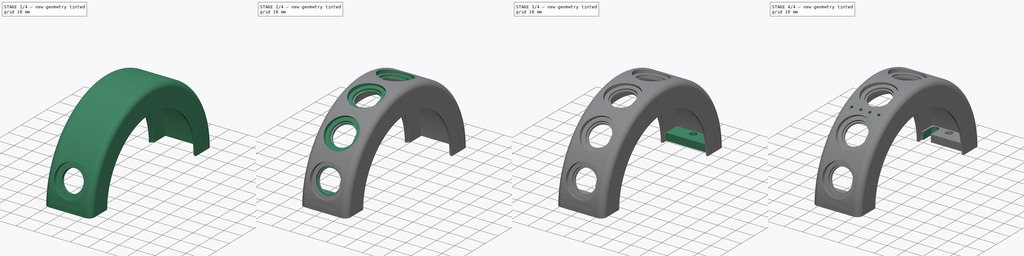
[diagram: build sequence overview — one tinted view per stage of 4, left to right]
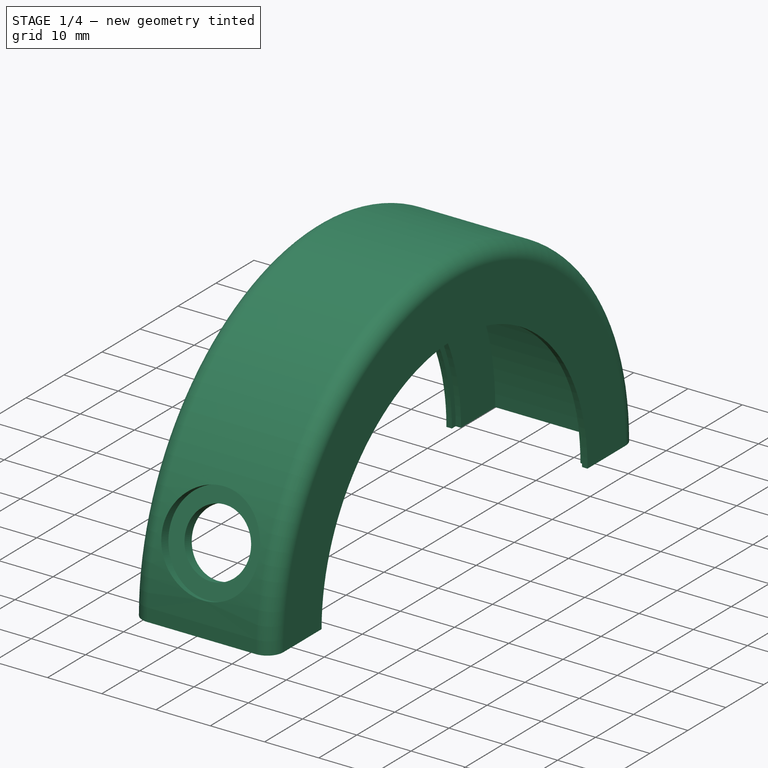
[diagram: stage 1 of 4 — iso view after this stage's code; geometry added in this stage tinted green]
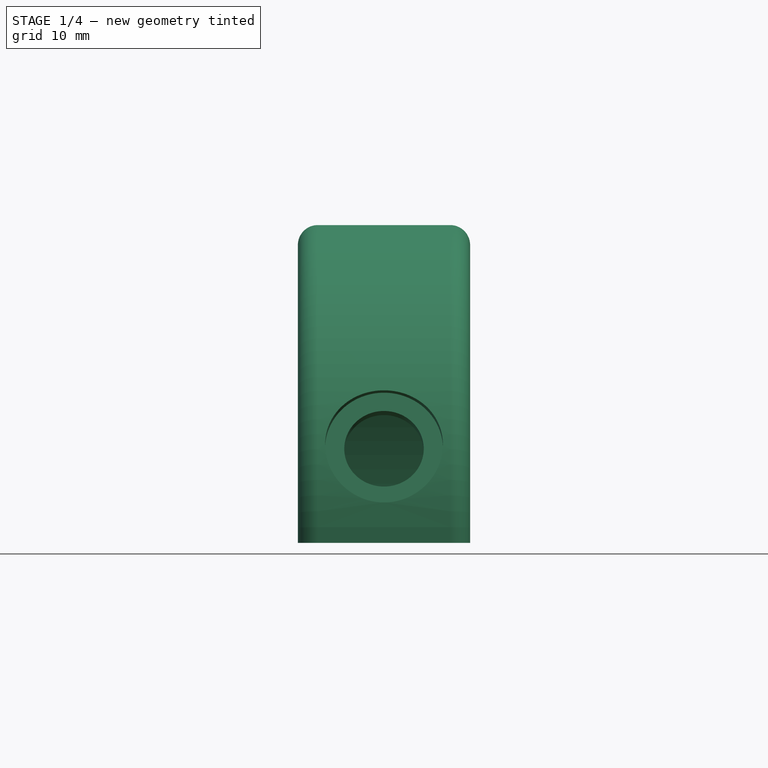
[diagram: stage 1 of 4 — front view after this stage's code; geometry added in this stage tinted green]
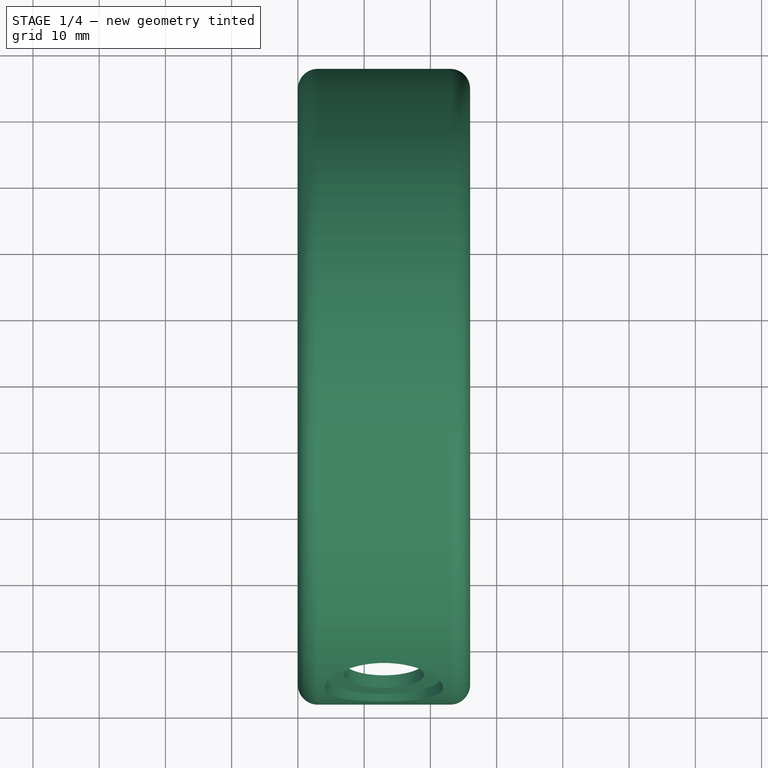
[diagram: stage 1 of 4 — top view after this stage's code; geometry added in this stage tinted green]
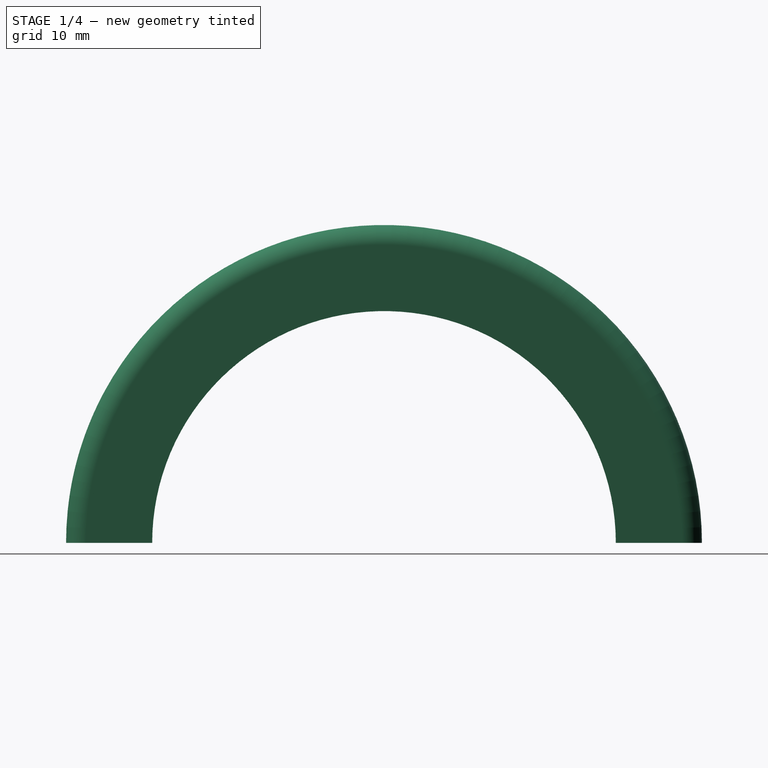
[diagram: stage 1 of 4 — right view after this stage's code; geometry added in this stage tinted green]
FCSTD DOCUMENT  (FreeCAD 1.0R39285 (Git))
Label: UpperPartFront
Comment: # 2025-08-26 21:40:01: read from None
License: All rights reserved
LicenseURL: https://en.wikipedia.org/wiki/All_rights_reserved
objects: Sketcher::SketchObject×13, PartDesign::Pocket×5, PartDesign::Pad×4, Spreadsheet::Sheet×3, PartDesign::Hole×2, App::Link×2, PartDesign::Revolution×1, PartDesign::PolarPattern×1, PartDesign::Mirrored×1, PartDesign::Body×1
note: 67 computed .brp shape members not serialized (recipe doc carries the construction recipe); baked Part::Feature solids carry a one-line shape summary decoded from their .brp
EXTERNAL_REF file=MainDimensions.FCStd obj=Spreadsheet

FEATURE [Spreadsheet::Sheet] Parameters
  cells = A1='Parameter; B1='Value; C1='Comment; A2='Switch_Angle; B2(Switch_Angle)==83 °; A3='Number_Switch; B3(Number_Switch)=4; A4='Cable_Diameter; B4(Cable_Diameter)==4.2 mm; A5='Offset_Cable; B5(Offset_Cable)==8 mm; A6='d53; B6(d53_)==16.5 mm; A7='LED_Spacing; B7(LED_Spacing)==5 mm; A8='First_Angle; B8(First_Angle)==18 °
FEATURE [Sketcher::SketchObject] Sketch1
  ArcFitTolerance = 1e-06
  FullyConstrained = true
  MakeInternals = false
  expr: Constraints[26] = <<MainDimensions>>.Outer_Diameter / 2
  expr: Constraints[27] = <<MainDimensions>>.Width
  expr: Constraints[29] = <<MainDimensions>>.Cut_Diameter / 2
  sketch-geometry (16):
    g0: LineSegment StartX=0 StartY=35 StartZ=0 EndX=0 EndY=45 EndZ=0
    g1: LineSegment StartX=3 StartY=48 StartZ=0 EndX=23 EndY=48 EndZ=0
    g2: LineSegment StartX=26 StartY=45 StartZ=0 EndX=26 EndY=35 EndZ=0
    g3: LineSegment StartX=26 StartY=35 StartZ=0 EndX=25 EndY=35 EndZ=0
    g4: LineSegment StartX=25 StartY=35 StartZ=0 EndX=25 EndY=36 EndZ=0
    g5: LineSegment StartX=25 StartY=36 StartZ=0 EndX=24 EndY=36 EndZ=0
    g6: LineSegment StartX=24 StartY=36 StartZ=0 EndX=24 EndY=45 EndZ=0
    g7: LineSegment StartX=24 StartY=45 StartZ=0 EndX=2 EndY=45 EndZ=0
    g8: LineSegment StartX=2 StartY=45 StartZ=0 EndX=2 EndY=36 EndZ=0
    g9: LineSegment StartX=2 StartY=36 StartZ=0 EndX=1 EndY=36 EndZ=0
    g10: LineSegment StartX=1 StartY=36 StartZ=0 EndX=1 EndY=35 EndZ=0
    g11: LineSegment StartX=1 StartY=35 StartZ=0 EndX=0 EndY=35 EndZ=0
    g12: ArcOfCircle CenterX=3 CenterY=45 CenterZ=0 NormalX=0 NormalY=0 NormalZ=1 AngleXU=0 Radius=3 StartAngle=1.5708 EndAngle=3.14159
    g13: GeomPoint [constr] X=0 Y=48 Z=0
    g14: ArcOfCircle CenterX=23 CenterY=45 CenterZ=0 NormalX=0 NormalY=0 NormalZ=1 AngleXU=0 Radius=3 StartAngle=8e-16 EndAngle=1.5708
    g15: GeomPoint [constr] X=26 Y=48 Z=0
  constraints (43):
    c: PointOnObject(g0,g-2)
    c: PointOnObject(g13,g-2)
    c: Horizontal(g1)
    c: Vertical(g2)
    c: Coincident(g3,g2)
    c: Horizontal(g3)
    c: Coincident(g4,g3)
    c: Vertical(g4)
    c: Coincident(g5,g4)
    c: Horizontal(g5)
    c: Coincident(g6,g5)
    c: Vertical(g6)
    c: Coincident(g7,g6)
    c: Horizontal(g7)
    c: Coincident(g8,g7)
    c: Vertical(g8)
    c: Coincident(g9,g8)
    c: Horizontal(g9)
    c: Coincident(g10,g9)
    c: Vertical(g10)
    c: Coincident(g11,g10)
    c: Coincident(g11,g0)
    c: Equal(g10,g9)
    c: Equal(g5,g9)
    c: Equal(g4,g5)
    c: Equal(g4,g3)
    c: DistanceY(g-1,g13) = 48
    c: DistanceX(g13,g15) = 26
    c: DistanceX(g11,g11) = 1
    c: Distance(g-1,g11) = 35
    c: Distance(g13,g7) = 3
    c: PointOnObject(g13,g0)
    c: PointOnObject(g13,g1)
    c: Tangent(g0,g12) = 1.5708
    c: Tangent(g1,g12) = 1.5708
    c: PointOnObject(g15,g1)
    c: PointOnObject(g15,g2)
    c: Tangent(g1,g14) = 1.5708
    c: Tangent(g2,g14) = 1.5708
    c: Equal(g14,g12)
    c: Radius(g12) = 3
    c: Tangent(g11,g3)
    c: Equal(g11,g10)
FEATURE [Sketcher::SketchObject] Sketch2
  ArcFitTolerance = 1e-06
  FullyConstrained = false
  MakeInternals = false
  Placement = pos=(26,0,0) rot=(0,1,0;1.5708rad)
  expr: Constraints[1] = Parameters.First_Angle
  sketch-geometry (1):
    g0: LineSegment StartX=0 StartY=0 StartZ=0 EndX=-15.6055 EndY=-48.0289 EndZ=0
  constraints (2):
    c: Coincident(g0,g-1)
    c: Angle(g0,g-2) = 0.314159
FEATURE [Sketcher::SketchObject] Sketch3
  ArcFitTolerance = 1e-06
  FullyConstrained = true
  MakeInternals = false
  Placement = pos=(13,-45.6507,14.8328) rot=(1,0,0;1.25664rad)
  expr: .Placement.Base.x = <<MainDimensions>>.Width / 2
  expr: .Placement.Base.y = -cos(Parameters.First_Angle) * <<MainDimensions>>.Outer_Diameter / 2
  expr: .Placement.Base.z = sin(Parameters.First_Angle) * <<MainDimensions>>.Outer_Diameter / 2
  expr: .Placement.Rotation.Angle = 90 ° - Parameters.First_Angle
  sketch-geometry (1):
    g0: Circle CenterX=0 CenterY=-2.2e-15 CenterZ=0 NormalX=0 NormalY=0 NormalZ=1 AngleXU=0 Radius=6
  constraints (2):
    c: Diameter(g0) = 12  'd7'
    c: Coincident(g0,g-1)
FEATURE [Sketcher::SketchObject] Sketch4
  ArcFitTolerance = 1e-06
  FullyConstrained = true
  MakeInternals = false
  Placement = pos=(13,-43.7486,14.2148) rot=(1,0,0;1.25664rad)
  expr: .Placement.Base.x = <<MainDimensions>>.Width / 2
  expr: .Placement.Base.y = -cos(Parameters.First_Angle) * (<<MainDimensions>>.Outer_Diameter / 2 - 2 mm)
  expr: .Placement.Base.z = sin(Parameters.First_Angle) * (<<MainDimensions>>.Outer_Diameter / 2 - 2 mm)
  expr: .Placement.Rotation.Angle = 90 ° - Parameters.First_Angle
  sketch-geometry (2):
    g0: ArcOfCircle CenterX=0 CenterY=0 CenterZ=0 NormalX=0 NormalY=0 NormalZ=1 AngleXU=0 Radius=6.85 StartAngle=0.439159 EndAngle=5.84403
    g1: LineSegment StartX=6.2 StartY=2.91247 StartZ=0 EndX=6.2 EndY=-2.91247 EndZ=0
  constraints (6):
    c: Vertical(g1)
    c: Coincident(g0,g-1)
    c: Distance(g0,g1) = 6.2
    c: Diameter(g0) = 13.7
    c: Coincident(g0,g1)
    c: Coincident(g0,g1)
FEATURE [Sketcher::SketchObject] Sketch5
  ArcFitTolerance = 1e-06
  FullyConstrained = true
  MakeInternals = false
  Placement = pos=(13,-45.6507,14.8328) rot=(1,0,0;1.25664rad)
  expr: .Placement.Base.x = <<MainDimensions>>.Width / 2
  expr: .Placement.Base.y = -cos(Parameters.First_Angle) * <<MainDimensions>>.Outer_Diameter / 2
  expr: .Placement.Base.z = sin(Parameters.First_Angle) * <<MainDimensions>>.Outer_Diameter / 2
  expr: .Placement.Rotation.Angle = 90 ° - Parameters.First_Angle
  sketch-geometry (1):
    g0: Circle CenterX=0 CenterY=-2.2e-15 CenterZ=0 NormalX=0 NormalY=0 NormalZ=1 AngleXU=0 Radius=8.9
  constraints (2):
    c: Diameter(g0) = 17.8
    c: Coincident(g0,g-1)
FEATURE [Sketcher::SketchObject] Sketch6
  ArcFitTolerance = 1e-06
  FullyConstrained = true
  MakeInternals = false
  Placement = pos=(24,-45,0) rot=(0,1,0;3.14159rad)
  expr: Constraints[10] = (<<MainDimensions>>.Outer_Diameter - <<MainDimensions>>.Cut_Diameter) / 2 - 4 mm
  expr: Constraints[9] = <<MainDimensions>>.Width - 4 mm
  sketch-geometry (4):
    g0: LineSegment StartX=0 StartY=0 StartZ=0 EndX=22 EndY=0 EndZ=0
    g1: LineSegment StartX=22 StartY=0 StartZ=0 EndX=22 EndY=9 EndZ=0
    g2: LineSegment StartX=22 StartY=9 StartZ=0 EndX=0 EndY=9 EndZ=0
    g3: LineSegment StartX=0 StartY=9 StartZ=0 EndX=0 EndY=0 EndZ=0
  constraints (11):
    c: Parallel(g0,g2)
    c: Parallel(g1,g3)
    c: Horizontal(g0)
    c: Coincident(g-1,g0)
    c: Coincident(g-1,g3)
    c: Coincident(g3,g2)
    c: Coincident(g2,g1)
    c: Coincident(g1,g0)
    c: Vertical(g3)
    c: DistanceX(g2,g2) = 22
    c: DistanceY(g1,g1) = 9
FEATURE [Sketcher::SketchObject] Sketch7
  ArcFitTolerance = 1e-06
  FullyConstrained = true
  MakeInternals = false
  Placement = pos=(13,-35,0) rot=(0,1,0;3.14159rad)
  expr: .Placement.Base.x = <<MainDimensions>>.Width / 2
  expr: .Placement.Base.y = -<<MainDimensions>>.Cut_Diameter / 2
  expr: Constraints[7] = <<MainDimensions>>.Width - 2 mm
  expr: Constraints[8] = (<<MainDimensions>>.Outer_Diameter - <<MainDimensions>>.Cut_Diameter) / 2 - 1 mm
  sketch-geometry (8):
    g0: LineSegment StartX=12 StartY=0 StartZ=0 EndX=12 EndY=-10 EndZ=0
    g1: LineSegment StartX=10 StartY=-12 StartZ=0 EndX=-10 EndY=-12 EndZ=0
    g2: LineSegment StartX=-12 StartY=-10 StartZ=0 EndX=-12 EndY=0 EndZ=0
    g3: LineSegment StartX=12 StartY=0 StartZ=0 EndX=-12 EndY=0 EndZ=0
    g4: ArcOfCircle CenterX=-10 CenterY=-10 CenterZ=0 NormalX=0 NormalY=0 NormalZ=1 AngleXU=0 Radius=2 StartAngle=3.14159 EndAngle=4.71239
    g5: GeomPoint [constr] X=-12 Y=-12 Z=0
    g6: ArcOfCircle CenterX=10 CenterY=-10 CenterZ=0 NormalX=0 NormalY=0 NormalZ=1 AngleXU=0 Radius=2 StartAngle=4.71239 EndAngle=6.28319
    g7: GeomPoint [constr] X=12 Y=-12 Z=0
  constraints (19):
    c: Perpendicular(g2,g3)
    c: Coincident(g3,g2)
    c: Coincident(g3,g0)
    c: Symmetric(g2,g0,g-1)
    c: Horizontal(g3)
    c: Horizontal(g1)
    c: Vertical(g0)
    c: DistanceX(g3,g3) = 24
    c: Distance(g3,g1) = 12
    c: PointOnObject(g5,g1)
    c: PointOnObject(g5,g2)
    c: Tangent(g1,g4) = 1.5708
    c: Tangent(g2,g4) = 1.5708
    c: PointOnObject(g7,g1)
    c: PointOnObject(g7,g0)
    c: Tangent(g1,g6) = 1.5708
    c: Tangent(g0,g6) = 1.5708
    c: Equal(g4,g6)
    c: Radius(g4) = 2
FEATURE [Sketcher::SketchObject] Sketch8
  ArcFitTolerance = 1e-06
  FullyConstrained = true
  MakeInternals = false
  Placement = pos=(13,-42,0.5) rot=(0,1,0;3.14159rad)
  sketch-geometry (1):
    g0: Circle CenterX=0 CenterY=0 CenterZ=0 NormalX=0 NormalY=0 NormalZ=1 AngleXU=0 Radius=1.9
  constraints (2):
    c: Diameter(g0) = 3.8
    c: Coincident(g0,g-1)
FEATURE [Sketcher::SketchObject] Sketch10
  ArcFitTolerance = 1e-06
  FullyConstrained = true
  MakeInternals = false
  Placement = pos=(13,48,0.5) rot=(0,1,0;3.14159rad)
  expr: .Placement.Base.x = <<MainDimensions>>.Width / 2
  expr: .Placement.Base.y = <<MainDimensions>>.Outer_Diameter / 2
  expr: Constraints[11] = (<<MainDimensions>>.Outer_Diameter - <<MainDimensions>>.Cut_Diameter) / 2
  expr: Constraints[8] = Parameters.Offset_Cable
  expr: Constraints[9] = Parameters.Cable_Diameter
  sketch-geometry (5):
    g0: LineSegment [constr] StartX=10.1 StartY=-6 StartZ=0 EndX=5.9 EndY=-6 EndZ=0
    g1: LineSegment StartX=5.9 StartY=-6 StartZ=0 EndX=5.9 EndY=-13 EndZ=0
    g2: LineSegment StartX=5.9 StartY=-13 StartZ=0 EndX=10.1 EndY=-13 EndZ=0
    g3: LineSegment StartX=10.1 StartY=-13 StartZ=0 EndX=10.1 EndY=-6 EndZ=0
    g4: ArcOfCircle CenterX=8 CenterY=-6 CenterZ=0 NormalX=0 NormalY=0 NormalZ=1 AngleXU=0 Radius=2.1 StartAngle=-9e-16 EndAngle=3.14159
  constraints (15):
    c: Perpendicular(g0,g1)
    c: Parallel(g0,g2)
    c: Parallel(g1,g3)
    c: Coincident(g0,g3)
    c: Coincident(g2,g3)
    c: Vertical(g1)
    c: Coincident(g2,g1)
    c: Coincident(g1,g0)
    c: DistanceX(g-1,g4) = 8
    c: Diameter(g4) = 4.2
    c: DistanceY(g4,g-1) = 6
    c: Distance(g-1,g2) = 13
    c: Coincident(g4,g1)
    c: Coincident(g4,g0)
    c: PointOnObject(g4,g0)
FEATURE [Sketcher::SketchObject] Sketch12
  ArcFitTolerance = 1e-06
  FullyConstrained = true
  MakeInternals = false
  Placement = pos=(13,-43.7486,14.2148) rot=(1,0,0;1.25664rad)
  expr: .Constraints.d53 = Parameters.d53_
  expr: .Placement.Base.x = <<MainDimensions>>.Width / 2
  expr: .Placement.Base.y = -cos(Parameters.First_Angle) * (<<MainDimensions>>.Outer_Diameter / 2 - 2 mm)
  expr: .Placement.Base.z = sin(Parameters.First_Angle) * (<<MainDimensions>>.Outer_Diameter / 2 - 2 mm)
  expr: .Placement.Rotation.Angle = 90 ° - Parameters.First_Angle
  expr: Constraints[15] = <<MainDimensions>>.Width - 2 mm
  sketch-geometry (7):
    g0: LineSegment StartX=-12 StartY=8.25 StartZ=0 EndX=12 EndY=8.25 EndZ=0
    g1: LineSegment StartX=12 StartY=8.25 StartZ=0 EndX=12 EndY=-8.25 EndZ=0
    g2: LineSegment StartX=12 StartY=-8.25 StartZ=0 EndX=-12 EndY=-8.25 EndZ=0
    g3: LineSegment StartX=-12 StartY=-8.25 StartZ=0 EndX=-12 EndY=8.25 EndZ=0
    g4: LineSegment [constr] StartX=-12 StartY=8.25 StartZ=0 EndX=12 EndY=-8.25 EndZ=0
    g5: LineSegment [constr] StartX=12 StartY=8.25 StartZ=0 EndX=-12 EndY=-8.25 EndZ=0
    g6: Circle CenterX=0 CenterY=0 CenterZ=0 NormalX=0 NormalY=0 NormalZ=1 AngleXU=0 Radius=6
  constraints (18):
    c: Parallel(g0,g2)
    c: Parallel(g1,g3)
    c: Horizontal(g0)
    c: Distance(g2,g0) = 16.5  'd53'
    c: Coincident(g0,g3)
    c: Coincident(g1,g2)
    c: Coincident(g2,g3)
    c: Coincident(g0,g1)
    c: Coincident(g4,g0)
    c: Coincident(g4,g1)
    c: Coincident(g5,g0)
    c: Coincident(g5,g2)
    c: PointOnObject(g-1,g4)
    c: PointOnObject(g-1,g5)
    c: Vertical(g3)
    c: DistanceX(g2,g2) = 24
    c: Coincident(g6,g-1)
    c: Diameter(g6) = 12
FEATURE [Sketcher::SketchObject] Sketch13
  ArcFitTolerance = 1e-06
  FullyConstrained = true
  MakeInternals = false
  Placement = pos=(13,48,0) rot=(0,1,0;3.14159rad)
  expr: .Placement.Base.x = <<MainDimensions>>.Width / 2
  expr: .Placement.Base.y = <<MainDimensions>>.Outer_Diameter / 2
  expr: Constraints[11] = Parameters.Cable_Diameter / 2
  expr: Constraints[9] = Parameters.Offset_Cable
  sketch-geometry (5):
    g0: LineSegment [constr] StartX=10.1 StartY=-6 StartZ=0 EndX=5.9 EndY=-6 EndZ=0
    g1: LineSegment StartX=5.9 StartY=-6 StartZ=0 EndX=5.9 EndY=0 EndZ=0
    g2: LineSegment StartX=5.9 StartY=0 StartZ=0 EndX=10.1 EndY=-2e-16 EndZ=0
    g3: LineSegment StartX=10.1 StartY=-2e-16 StartZ=0 EndX=10.1 EndY=-6 EndZ=0
    g4: ArcOfCircle CenterX=8 CenterY=-6 CenterZ=0 NormalX=0 NormalY=0 NormalZ=1 AngleXU=0 Radius=2.1 StartAngle=1e-16 EndAngle=3.14159
  constraints (15):
    c: Horizontal(g0)
    c: Coincident(g1,g2)
    c: Coincident(g2,g3)
    c: Coincident(g3,g0)
    c: Coincident(g0,g1)
    c: Equal(g0,g2)
    c: Equal(g3,g1)
    c: Horizontal(g-1,g1)
    c: Coincident(g4,g0)
    c: DistanceX(g-1,g4) = 8
    c: DistanceY(g4,g-1) = 6
    c: Radius(g4) = 2.1
    c: Vertical(g1)
    c: Coincident(g4,g0)
    c: PointOnObject(g4,g0)
FEATURE [Sketcher::SketchObject] Sketch15
  ArcFitTolerance = 1e-06
  FullyConstrained = true
  MakeInternals = false
  Placement = pos=(13,-24.3618,41.3582) rot=(0,-0.263031,0.964787;3.14159rad)
  expr: .Constraints.d69 = Parameters.LED_Spacing
  expr: .Placement.Base.x = <<MainDimensions>>.Width / 2
  expr: .Placement.Base.y = -cos(Parameters.First_Angle + Parameters.Switch_Angle / 2) * <<MainDimensions>>.Outer_Diameter / 2
  expr: .Placement.Base.z = sin(Parameters.First_Angle + Parameters.Switch_Angle / 2) * <<MainDimensions>>.Outer_Diameter / 2
  sketch-geometry (7):
    g0: LineSegment [constr] StartX=7.5 StartY=0 StartZ=0 EndX=2.5 EndY=0 EndZ=0
    g1: LineSegment [constr] StartX=2.5 StartY=0 StartZ=0 EndX=-2.5 EndY=0 EndZ=0
    g2: LineSegment [constr] StartX=-7.5 StartY=0 StartZ=0 EndX=-2.5 EndY=0 EndZ=0
    g3: Circle CenterX=-7.5 CenterY=0 CenterZ=0 NormalX=0 NormalY=0 NormalZ=1 AngleXU=0 Radius=0.75
    g4: Circle CenterX=-2.5 CenterY=0 CenterZ=0 NormalX=0 NormalY=0 NormalZ=1 AngleXU=0 Radius=0.75
    g5: Circle CenterX=2.5 CenterY=0 CenterZ=0 NormalX=0 NormalY=0 NormalZ=1 AngleXU=0 Radius=0.75
    g6: Circle CenterX=7.5 CenterY=0 CenterZ=0 NormalX=0 NormalY=0 NormalZ=1 AngleXU=0 Radius=0.75
  constraints (17):
    c: Parallel(g0,g1)
    c: Parallel(g1,g2)
    c: Equal(g1,g2)
    c: Equal(g1,g0)
    c: Distance(g0) = 5  'd69'
    c: Coincident(g2,g1)
    c: Coincident(g1,g0)
    c: Symmetric(g1,g0,g-1)
    c: Horizontal(g0)
    c: Coincident(g3,g2)
    c: Coincident(g4,g1)
    c: Coincident(g5,g0)
    c: Coincident(g6,g0)
    c: Equal(g6,g5)
    c: Equal(g5,g4)
    c: Equal(g4,g3)
    c: Diameter(g3) = 1.5
FEATURE [PartDesign::Revolution] Revolution
  Angle = 180
  Angle2 = 60
  Axis = (1,0,0)
  Base = (0,0,0)
  Profile = -> Sketch1
  ReferenceAxis = -> Sketch1 [H_Axis]
  Refine = true
  Suppressed = false
  Type = 0
FEATURE [PartDesign::Pocket] Pocket
  BaseFeature = -> Revolution
  Direction = (0,0.951057,-0.309017)
  Length = 2
  Length2 = 5
  Profile = -> Sketch5
  ReferenceAxis = -> Sketch5 [N_Axis]
  Refine = true
  Suppressed = false
  Type = 0
FEATURE [PartDesign::Pocket] Pocket001
  BaseFeature = -> Pocket
  Direction = (0,0.951057,-0.309017)
  Length = 5
  Length2 = 5
  Profile = -> Sketch3
  ReferenceAxis = -> Sketch3 [N_Axis]
  Refine = true
  Suppressed = false
  Type = 0
FEATURE [PartDesign::Pad] Pad
  BaseFeature = -> Pocket001
  Direction = (0,-0.951057,0.309017)
  Length = 2
  Length2 = 10
  Profile = -> Sketch12
  ReferenceAxis = -> Sketch12 [N_Axis]
  Refine = true
  Reversed = true
  Suppressed = false
  Type = 0
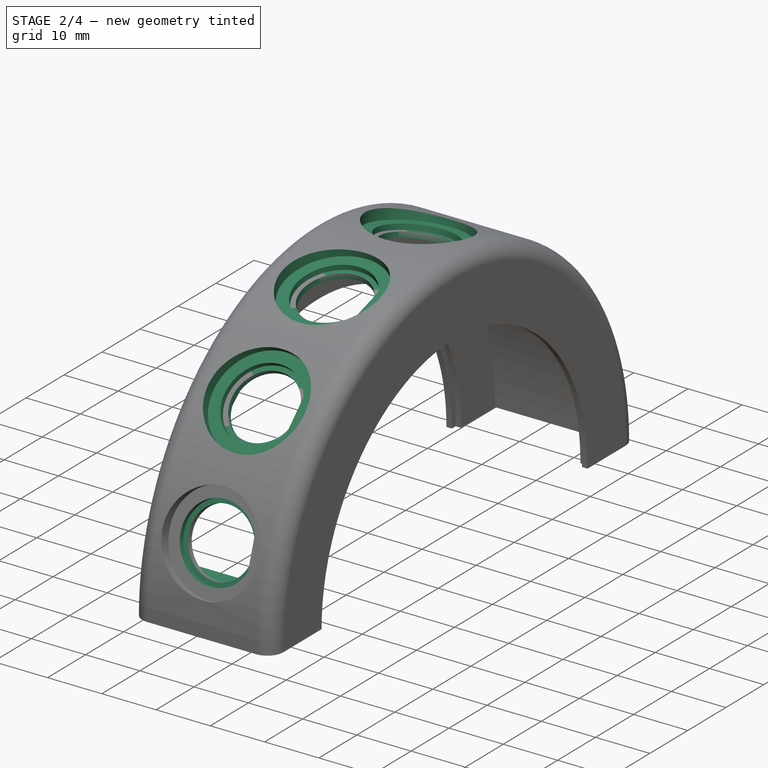
[diagram: stage 2 of 4 — iso view after this stage's code; geometry added in this stage tinted green]
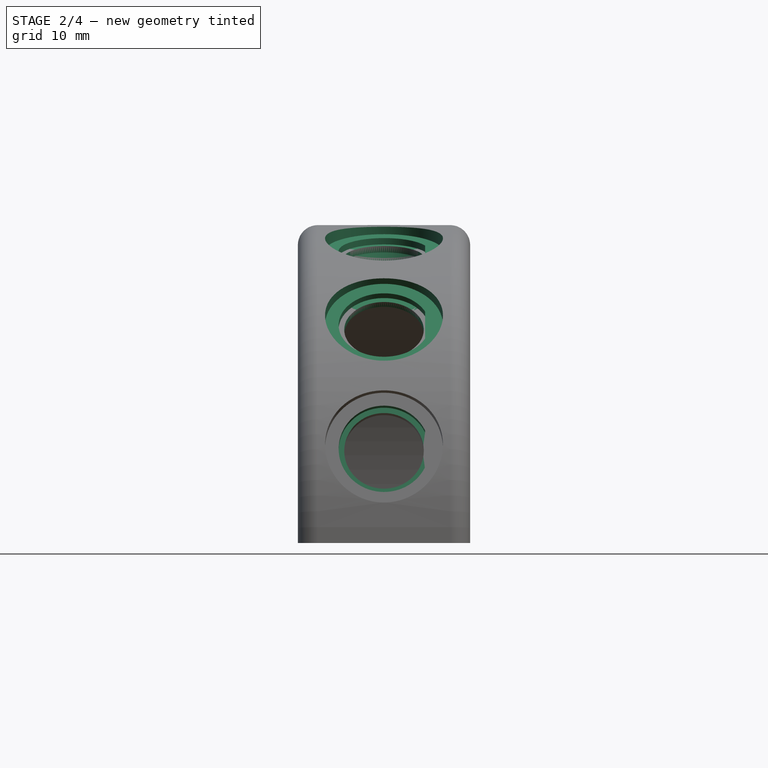
[diagram: stage 2 of 4 — front view after this stage's code; geometry added in this stage tinted green]
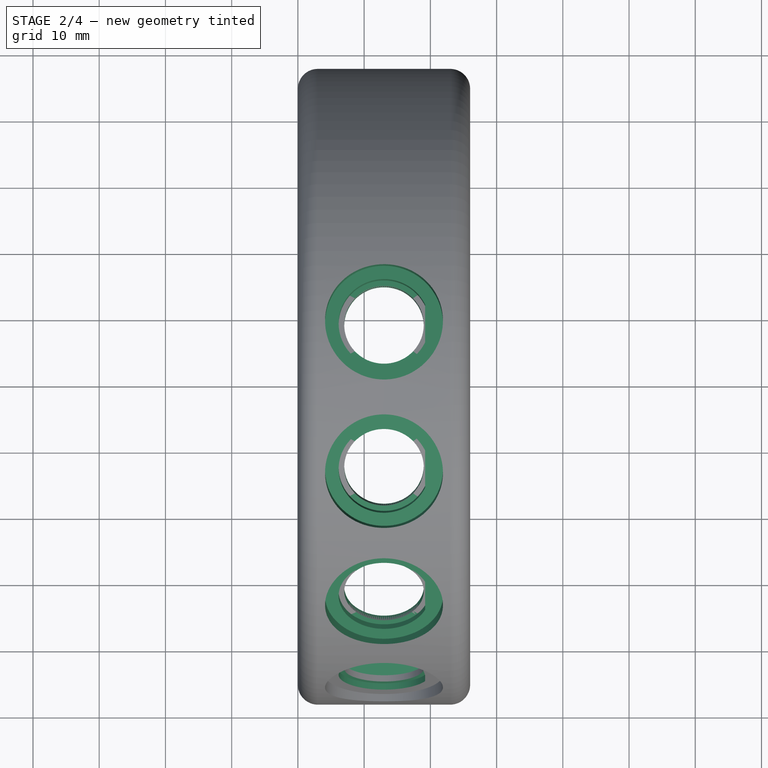
[diagram: stage 2 of 4 — top view after this stage's code; geometry added in this stage tinted green]
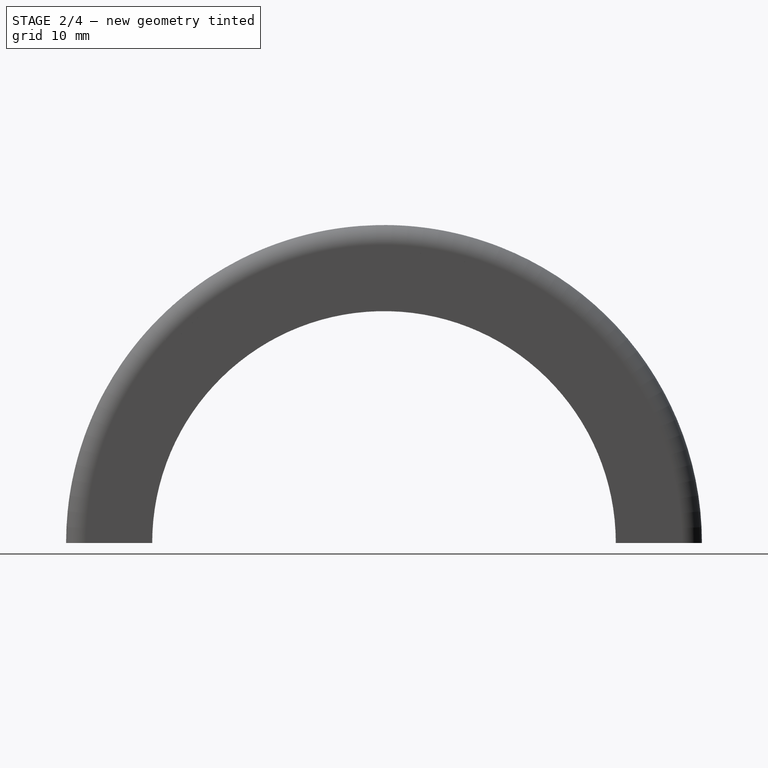
[diagram: stage 2 of 4 — right view after this stage's code; geometry added in this stage tinted green]
FEATURE [PartDesign::Pocket] Pocket002
  BaseFeature = -> Pad
  Direction = (0,0.951057,-0.309017)
  Length = 1
  Length2 = 5
  Profile = -> Sketch4
  ReferenceAxis = -> Sketch4 [N_Axis]
  Refine = true
  Suppressed = false
  Type = 0
FEATURE [PartDesign::PolarPattern] PolarPattern
  Angle = 83
  Axis = -> X_Axis
  BaseFeature = -> Pocket002
  Mode = 0
  Occurrences = 4
  Offset = 83
  Originals = -> [Pocket,Pocket001,Pad,Pocket002]
  Refine = true
  Reversed = true
  Suppressed = false
  TransformMode = 0
  expr: Angle = Parameters.Switch_Angle
  expr: Occurrences = Parameters.Number_Switch
FEATURE [PartDesign::Pad] Pad001
  BaseFeature = -> PolarPattern
  Direction = (1e-16,0,-1)
  Length = 5
  Length2 = 10
  Profile = -> Sketch6
  ReferenceAxis = -> Sketch6 [N_Axis]
  Refine = true
  Reversed = true
  Suppressed = false
  Type = 0
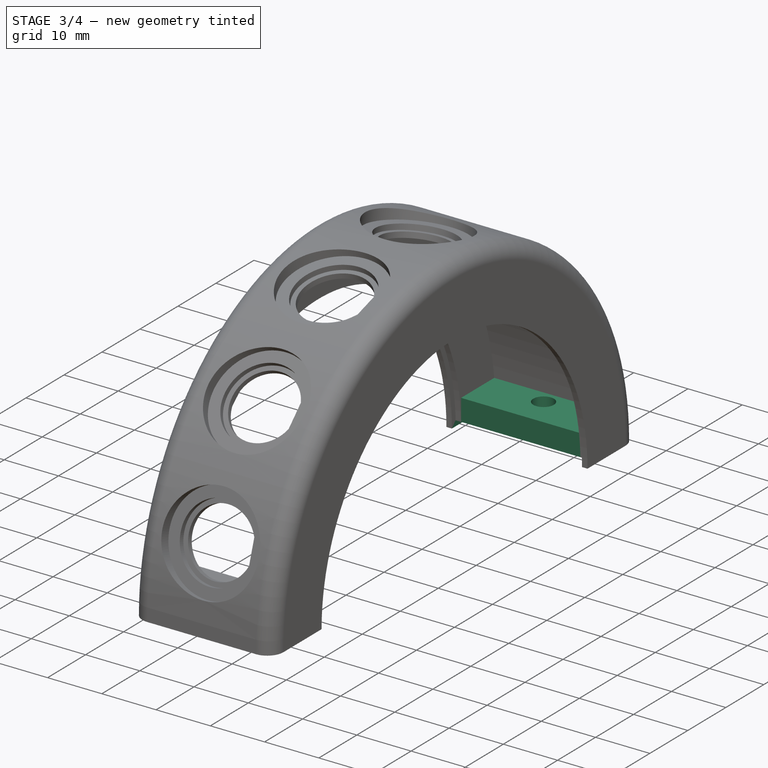
[diagram: stage 3 of 4 — iso view after this stage's code; geometry added in this stage tinted green]
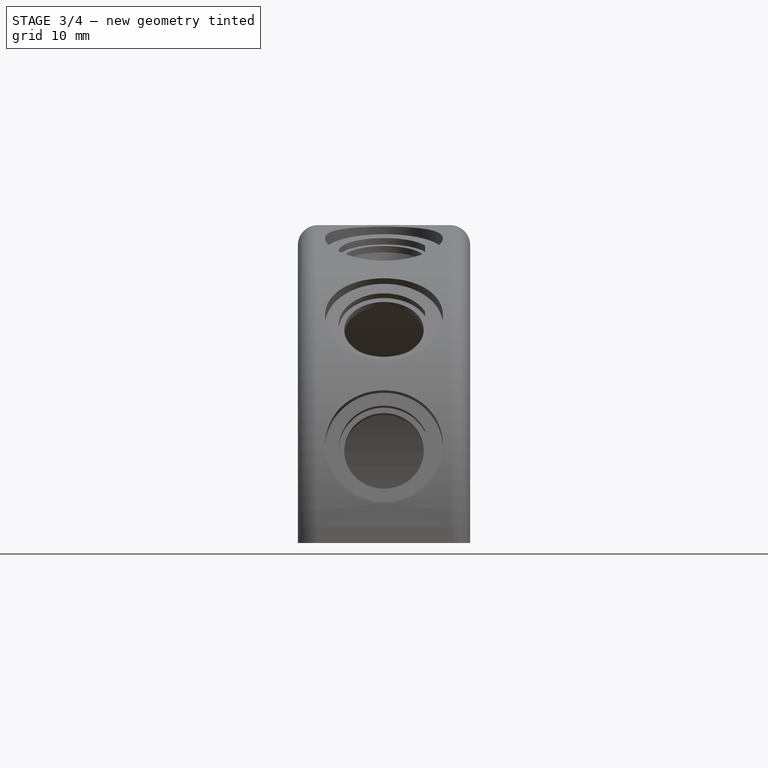
[diagram: stage 3 of 4 — front view after this stage's code; geometry added in this stage tinted green]
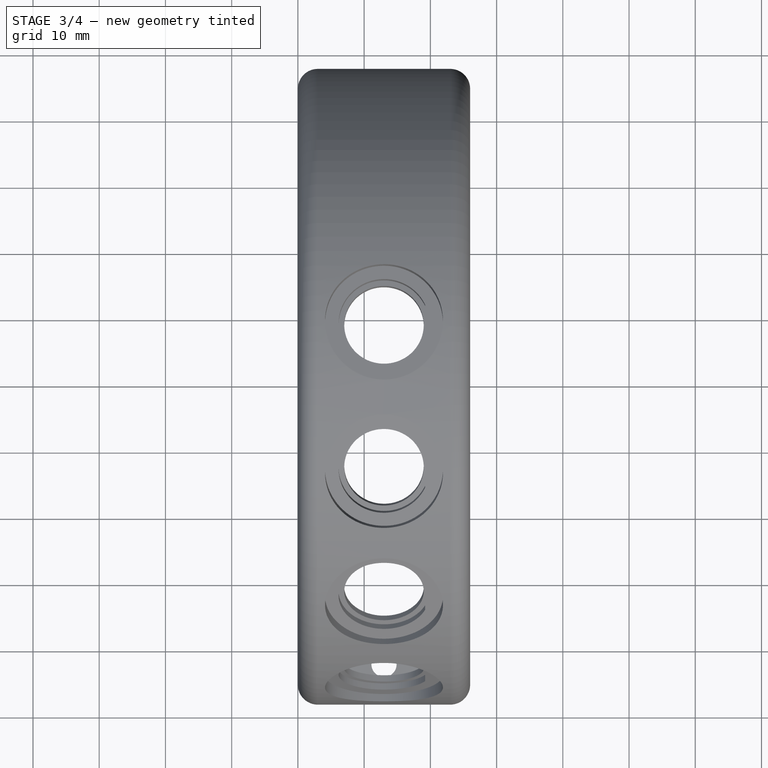
[diagram: stage 3 of 4 — top view after this stage's code; geometry added in this stage tinted green]
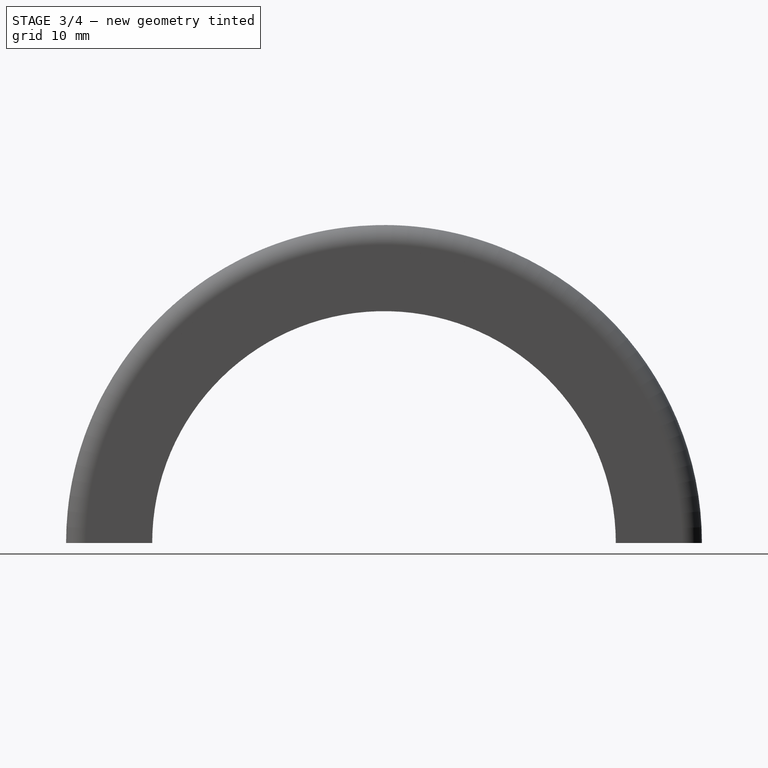
[diagram: stage 3 of 4 — right view after this stage's code; geometry added in this stage tinted green]
FEATURE [PartDesign::Pocket] Pocket003
  BaseFeature = -> Pad001
  Direction = (-1e-16,0,1)
  Length = 1
  Length2 = 5
  Profile = -> Sketch7
  ReferenceAxis = -> Sketch7 [N_Axis]
  Refine = true
  Suppressed = false
  Type = 0
FEATURE [PartDesign::Hole] Hole
  BaseFeature = -> Pocket003
  CustomThreadClearance = 0
  Depth = 4.5
  DepthType = 0
  Diameter = 3.8
  DrillForDepth = false
  DrillPoint = 0
  DrillPointAngle = 118
  HoleCutCountersinkAngle = 90
  HoleCutCustomValues = false
  HoleCutDepth = 0
  HoleCutDiameter = 6.1
  HoleCutType = 0
  ModelThread = false
  Profile = -> Sketch8
  Refine = true
  Suppressed = false
  Tapered = false
  TaperedAngle = 90
  ThreadClass = 0
  ThreadDepth = 4.5
  ThreadDepthType = 0
  ThreadDirection = 0
  ThreadFit = 0
  ThreadSize = 0
  ThreadType = 0
  Threaded = false
  UseCustomThreadClearance = false
FEATURE [PartDesign::Mirrored] Mirrored
  BaseFeature = -> Hole
  MirrorPlane = -> XZ_Plane
  Originals = -> [Pad001,Pocket003,Hole]
  Refine = true
  Suppressed = false
  TransformMode = 0
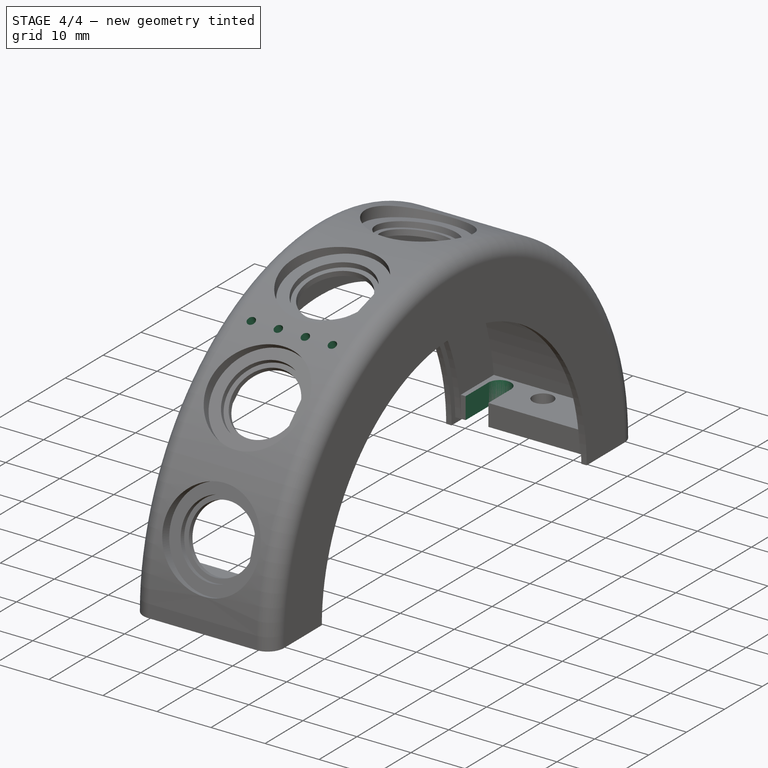
[diagram: stage 4 of 4 — iso view after this stage's code; geometry added in this stage tinted green]
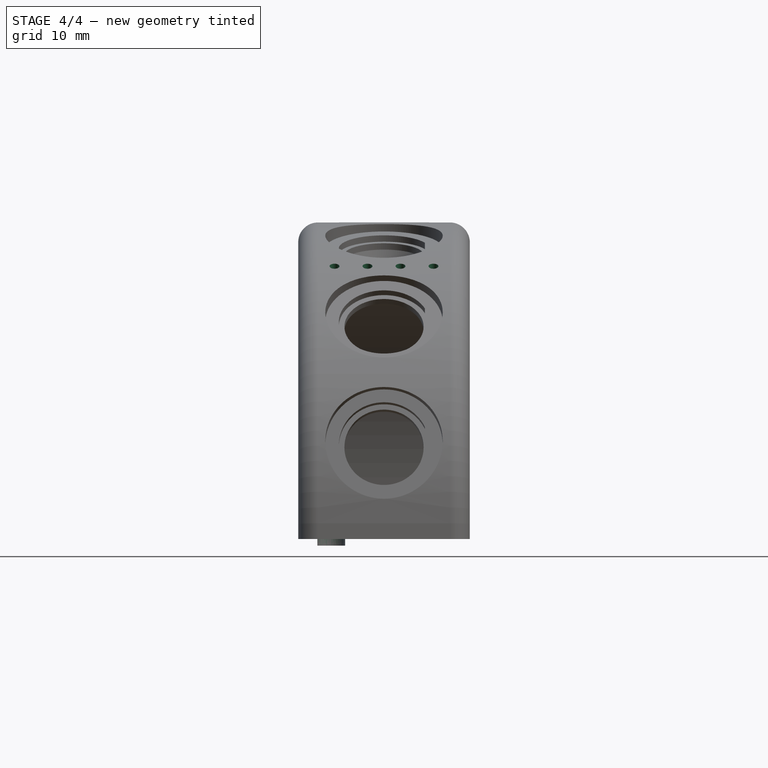
[diagram: stage 4 of 4 — front view after this stage's code; geometry added in this stage tinted green]
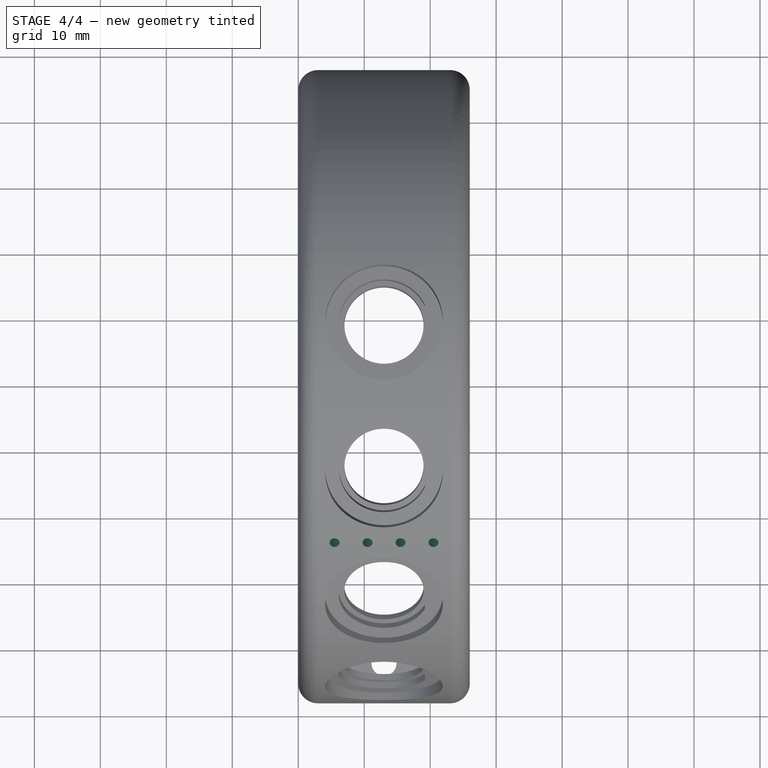
[diagram: stage 4 of 4 — top view after this stage's code; geometry added in this stage tinted green]
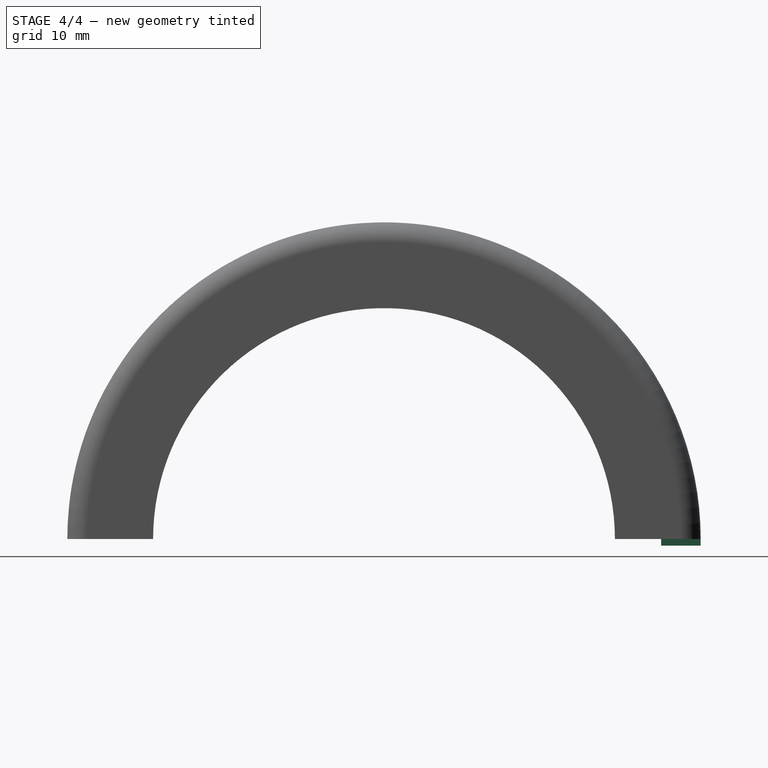
[diagram: stage 4 of 4 — right view after this stage's code; geometry added in this stage tinted green]
FEATURE [PartDesign::Pocket] Pocket004
  BaseFeature = -> Mirrored
  Direction = (-1e-16,0,1)
  Length = 5
  Length2 = 5
  Profile = -> Sketch10
  ReferenceAxis = -> Sketch10 [N_Axis]
  Refine = true
  Suppressed = false
  Type = 0
FEATURE [PartDesign::Pad] Pad002
  BaseFeature = -> Pocket004
  Direction = (1e-16,0,-1)
  Length = 1
  Length2 = 10
  Profile = -> Sketch13
  ReferenceAxis = -> Sketch13 [N_Axis]
  Refine = true
  Suppressed = false
  Type = 0
FEATURE [PartDesign::Hole] Hole001
  BaseFeature = -> Pad002
  CustomThreadClearance = 0
  Depth = 5
  DepthType = 0
  Diameter = 1.5
  DrillForDepth = false
  DrillPoint = 1
  DrillPointAngle = 118
  HoleCutCountersinkAngle = 90
  HoleCutCustomValues = false
  HoleCutDepth = 0
  HoleCutDiameter = 6.1
  HoleCutType = 0
  ModelThread = false
  Profile = -> Sketch15
  Refine = true
  Suppressed = false
  Tapered = false
  TaperedAngle = 90
  ThreadClass = 0
  ThreadDepth = 5
  ThreadDepthType = 0
  ThreadDirection = 0
  ThreadFit = 0
  ThreadSize = 0
  ThreadType = 0
  Threaded = false
  UseCustomThreadClearance = false
FEATURE [App::Link] Link  label="MainDimensions"
  LinkedObject = -> <external MainDimensions.FCStd>#Spreadsheet
FEATURE [Spreadsheet::Sheet] Spreadsheet  label="MainDimensions001"
  cells = A1='Outer_Diameter; B1(Outer_Diameter)==96 mm; A2='Width; B2(Width)==26 mm; A3='Cut_Diameter; B3(Cut_Diameter)==70 mm
FEATURE [App::Link] Link001  label="MainDimensions002"
  LinkedObject = -> Spreadsheet
FEATURE [Spreadsheet::Sheet] Parameters001
  cells = A1='Parameter; B1='Value; C1='Comment; A2='Switch_Angle; B2(Switch_Angle)==83 °; A3='Number_Switch; B3(Number_Switch)=4; A4='Cable_Diameter; B4(Cable_Diameter)==4.2 mm; A5='Offset_Cable; B5(Offset_Cable)==8 mm; A6='d53; B6(d53_)==16.5 mm; A7='LED_Spacing; B7(LED_Spacing)==5 mm; A8='First_Angle; B8(First_Angle)==18 °
FEATURE [Sketcher::SketchObject] Sketch016
  ArcFitTolerance = 1e-06
  FullyConstrained = true
  MakeInternals = false
  Placement = pos=(13,48,0) rot=(0,1,0;3.14159rad)
  expr: .Placement.Base.x = <<MainDimensions002>>.Width / 2
  expr: .Placement.Base.y = <<MainDimensions002>>.Outer_Diameter / 2
  expr: Constraints[10] = Parameters001.Cable_Diameter / 2
  expr: Constraints[8] = Parameters001.Offset_Cable
  sketch-geometry (5):
    g0: LineSegment [constr] StartX=10.1 StartY=-6 StartZ=0 EndX=5.9 EndY=-6 EndZ=0
    g1: LineSegment StartX=5.9 StartY=-6 StartZ=0 EndX=5.9 EndY=-1 EndZ=0
    g2: LineSegment StartX=5.9 StartY=-1 StartZ=0 EndX=10.1 EndY=-1 EndZ=0
    g3: LineSegment StartX=10.1 StartY=-1 StartZ=0 EndX=10.1 EndY=-6 EndZ=0
    g4: ArcOfCircle CenterX=8 CenterY=-6 CenterZ=0 NormalX=0 NormalY=0 NormalZ=1 AngleXU=0 Radius=2.1 StartAngle=1e-15 EndAngle=3.14159
  constraints (15):
    c: Horizontal(g0)
    c: Coincident(g1,g2)
    c: Coincident(g2,g3)
    c: Coincident(g3,g0)
    c: Coincident(g0,g1)
    c: Equal(g0,g2)
    c: Equal(g3,g1)
    c: Coincident(g4,g0)
    c: DistanceX(g-1,g4) = 8
    c: DistanceY(g4,g-1) = 6
    c: Radius(g4) = 2.1
    c: Vertical(g1)
    c: Coincident(g4,g0)
    c: PointOnObject(g4,g0)
    c: Distance(g2,g0) = 5
FEATURE [PartDesign::Pad] Pad003
  BaseFeature = -> Hole001
  Direction = (1e-16,0,-1)
  Length = 1
  Length2 = 10
  Profile = -> Sketch016
  ReferenceAxis = -> Sketch016 [N_Axis]
  Refine = true
  Reversed = true
  Suppressed = false
  Type = 0
FEATURE [PartDesign::Body] Body_0  label="UpperPartFront"
  AllowCompound = false
  Group = -> [Sketch1,Revolution,Sketch2,Sketch5,Pocket,Sketch3,Pocket001,Sketch12,Pad,Pocket002,PolarPattern,Sketch6,Sketch4,Sketch10,Sketch13,Sketch15,Pad001,Sketch7,Pocket003,Hole,Mirrored,Sketch8,Pocket004,Pad002,Hole001,Sketch016,Pad003]
  Origin = -> Origin
  Tip = -> Pad003

RESOLVED EXTERNAL PARTS (link-assembly join: the EXTERNAL_REF files above that resolve inside this repo's crawl, each included once):
---- part MainDimensions.FCStd = doc fcstd_7fad5d4102e3 ----
FCSTD DOCUMENT  (FreeCAD 1.0R39285 (Git))
Label: MainDimensions
License: All rights reserved
LicenseURL: https://en.wikipedia.org/wiki/All_rights_reserved
objects: Spreadsheet::Sheet×1

FEATURE [Spreadsheet::Sheet] Spreadsheet  label="MainDimensions"
  cells = A1='Outer_Diameter; B1(Outer_Diameter)==96 mm; A2='Width; B2(Width)==26 mm; A3='Cut_Diameter; B3(Cut_Diameter)==70 mm; A4='Inner_Diameter_1; B4(Inner_Diameter_1)==Cut_Diameter - 4 mm; C4='66mm; A5='Inner_Diameter_2; B5(Inner_Diameter_2)==Cut_Diameter - 2 mm; C5='68mm
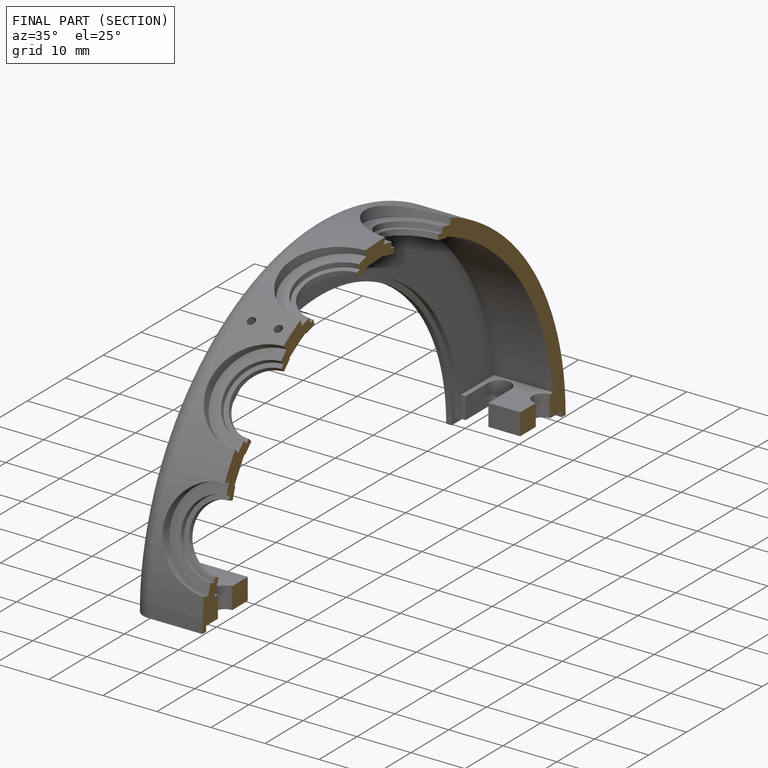
[diagram: finished part — half-section view (interior)]
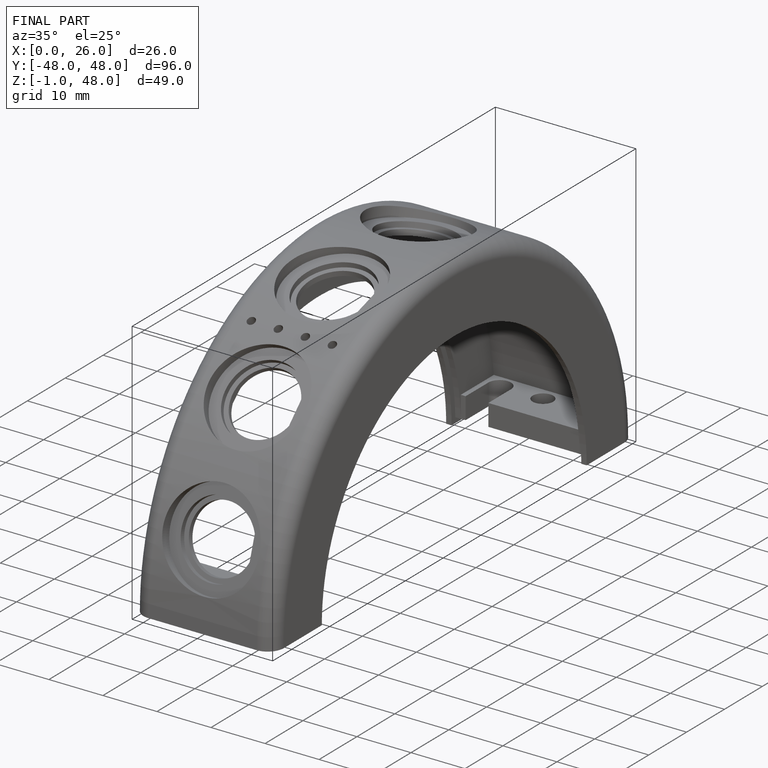
[diagram: finished part — iso view with bounding-box wireframe]
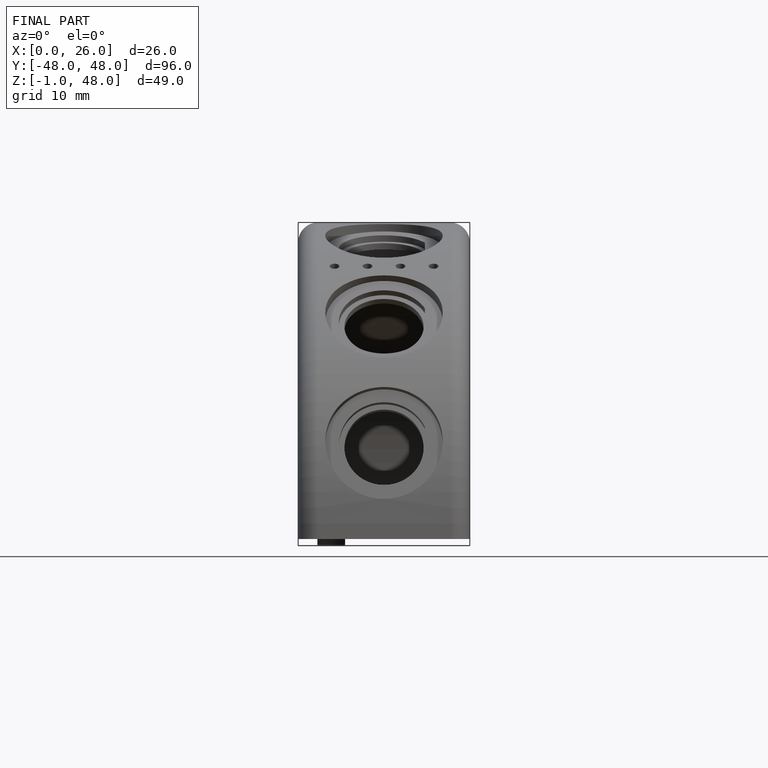
[diagram: finished part — front view with bounding-box wireframe]
